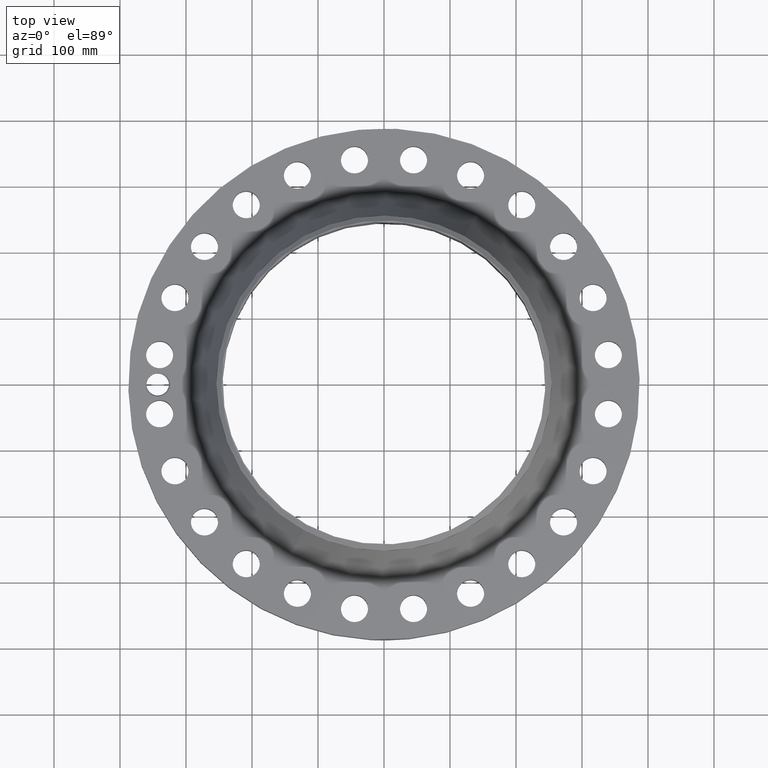
[diagram: clean part render]
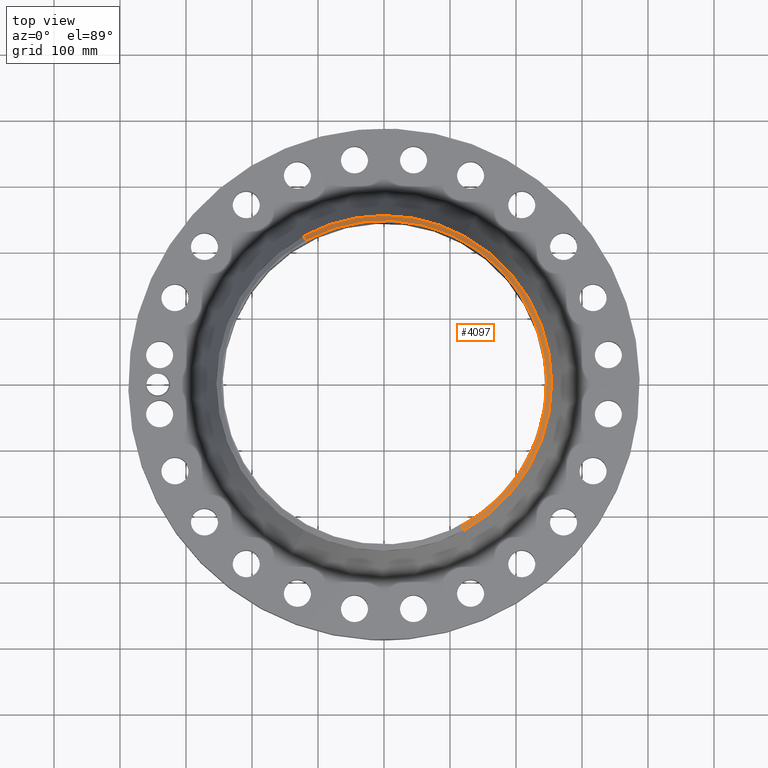
[diagram: same view with one face highlighted and labeled with its STEP entity id]
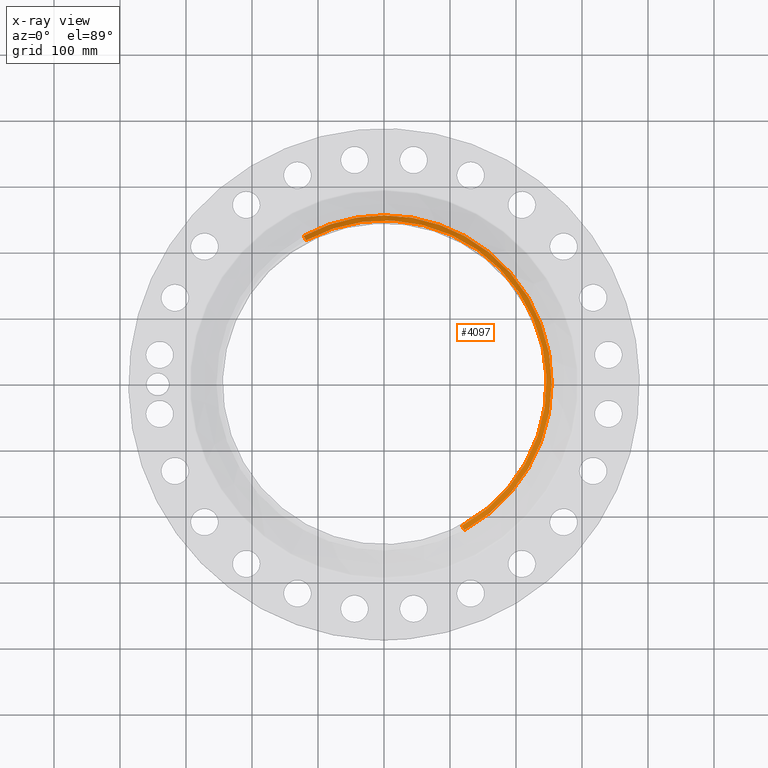
[diagram: x-ray of the same camera — body ghosted, the highlighted face saturated]
A machine part, top view. The second image highlights one B-rep face of the part: STEP entity #4097.
The next image is the same camera in x-ray: the body ghosted, the highlighted face saturated — about 0% of this face is hidden behind the body in this view.
In plain terms, the highlighted conical surface has half-angle 52.5 deg.
Its self-contained STEP definition (entity closure, byte-faithful):
#3216=AXIS2_PLACEMENT_3D('Circle Axis2P3D',#3214,#3215,$) ;
#4042=AXIS2_PLACEMENT_3D('Cone Axis2P3D',#4039,#4040,#4041) ;
#4080=AXIS2_PLACEMENT_3D('Circle Axis2P3D',#4078,#4079,$) ;
#4087=AXIS2_PLACEMENT_3D('Circle Axis2P3D',#4085,#4086,$) ;
#3214=CARTESIAN_POINT('Axis2P3D Location',(0.,0.,6.87000000003)) ;
#3218=CARTESIAN_POINT('Vertex',(4.65222085149,-8.51583314735,6.87000000003)) ;
#3220=CARTESIAN_POINT('Vertex',(-4.65222085149,8.51583314735,6.87000000003)) ;
#4039=CARTESIAN_POINT('Axis2P3D Location',(0.,0.,6.87000000003)) ;
#4044=CARTESIAN_POINT('Line Origine',(4.72323811878,-8.64582938315,6.75633591372)) ;
#4048=CARTESIAN_POINT('Vertex',(4.79425538606,-8.77582561894,6.64267182741)) ;
#4051=CARTESIAN_POINT('Line Origine',(-4.72323811878,8.64582938315,6.75633591372)) ;
#4055=CARTESIAN_POINT('Vertex',(-4.79425538606,8.77582561894,6.64267182741)) ;
#4078=CARTESIAN_POINT('Axis2P3D Location',(0.,0.,6.64267182741)) ;
#4082=CARTESIAN_POINT('Vertex',(4.79425538606,8.77582561894,6.64267182741)) ;
#4085=CARTESIAN_POINT('Axis2P3D Location',(0.,0.,6.64267182741)) ;
#3215=DIRECTION('Axis2P3D Direction',(0.,0.,-0.0393700787402)) ;
#4040=DIRECTION('Axis2P3D Direction',(-0.,-0.,-0.0393700787402)) ;
#4041=DIRECTION('Axis2P3D XDirection',(-0.0188750212049,0.0345504945626,0.)) ;
#4045=DIRECTION('Vector Direction',(0.014974561121,-0.02741075027,-0.023966985394)) ;
#4052=DIRECTION('Vector Direction',(-0.014974561121,0.02741075027,-0.023966985394)) ;
#4079=DIRECTION('Axis2P3D Direction',(0.,0.,-0.0393700787402)) ;
#4086=DIRECTION('Axis2P3D Direction',(0.,0.,-0.0393700787402)) ;
#4046=VECTOR('Line Direction',#4045,0.0393700787402) ;
#4053=VECTOR('Line Direction',#4052,0.0393700787402) ;
#4091=ORIENTED_EDGE('',*,*,#4057,.F.) ;
#4092=ORIENTED_EDGE('',*,*,#3222,.F.) ;
#4093=ORIENTED_EDGE('',*,*,#4050,.T.) ;
#4094=ORIENTED_EDGE('',*,*,#4084,.T.) ;
#4095=ORIENTED_EDGE('',*,*,#4089,.F.) ;
#4097=ADVANCED_FACE('PartBody',(#4096),#4043,.T.) ;
#3217=CIRCLE('generated circle',#3216,9.70374015752) ;
#4081=CIRCLE('generated circle',#4080,10.) ;
#4088=CIRCLE('generated circle',#4087,10.) ;
#4043=CONICAL_SURFACE('Cone',#4042,9.70374015752,0.916297857297) ;
#3222=EDGE_CURVE('',#3219,#3221,#3217,.F.) ;
#4050=EDGE_CURVE('',#3219,#4049,#4047,.T.) ;
#4057=EDGE_CURVE('',#3221,#4056,#4054,.T.) ;
#4084=EDGE_CURVE('',#4049,#4083,#4081,.F.) ;
#4089=EDGE_CURVE('',#4056,#4083,#4088,.T.) ;
#4090=EDGE_LOOP('',(#4091,#4092,#4093,#4094,#4095)) ;
#4096=FACE_OUTER_BOUND('',#4090,.T.) ;
#4047=LINE('Line',#4044,#4046) ;
#4054=LINE('Line',#4051,#4053) ;
#3219=VERTEX_POINT('',#3218) ;
#3221=VERTEX_POINT('',#3220) ;
#4049=VERTEX_POINT('',#4048) ;
#4056=VERTEX_POINT('',#4055) ;
#4083=VERTEX_POINT('',#4082) ;